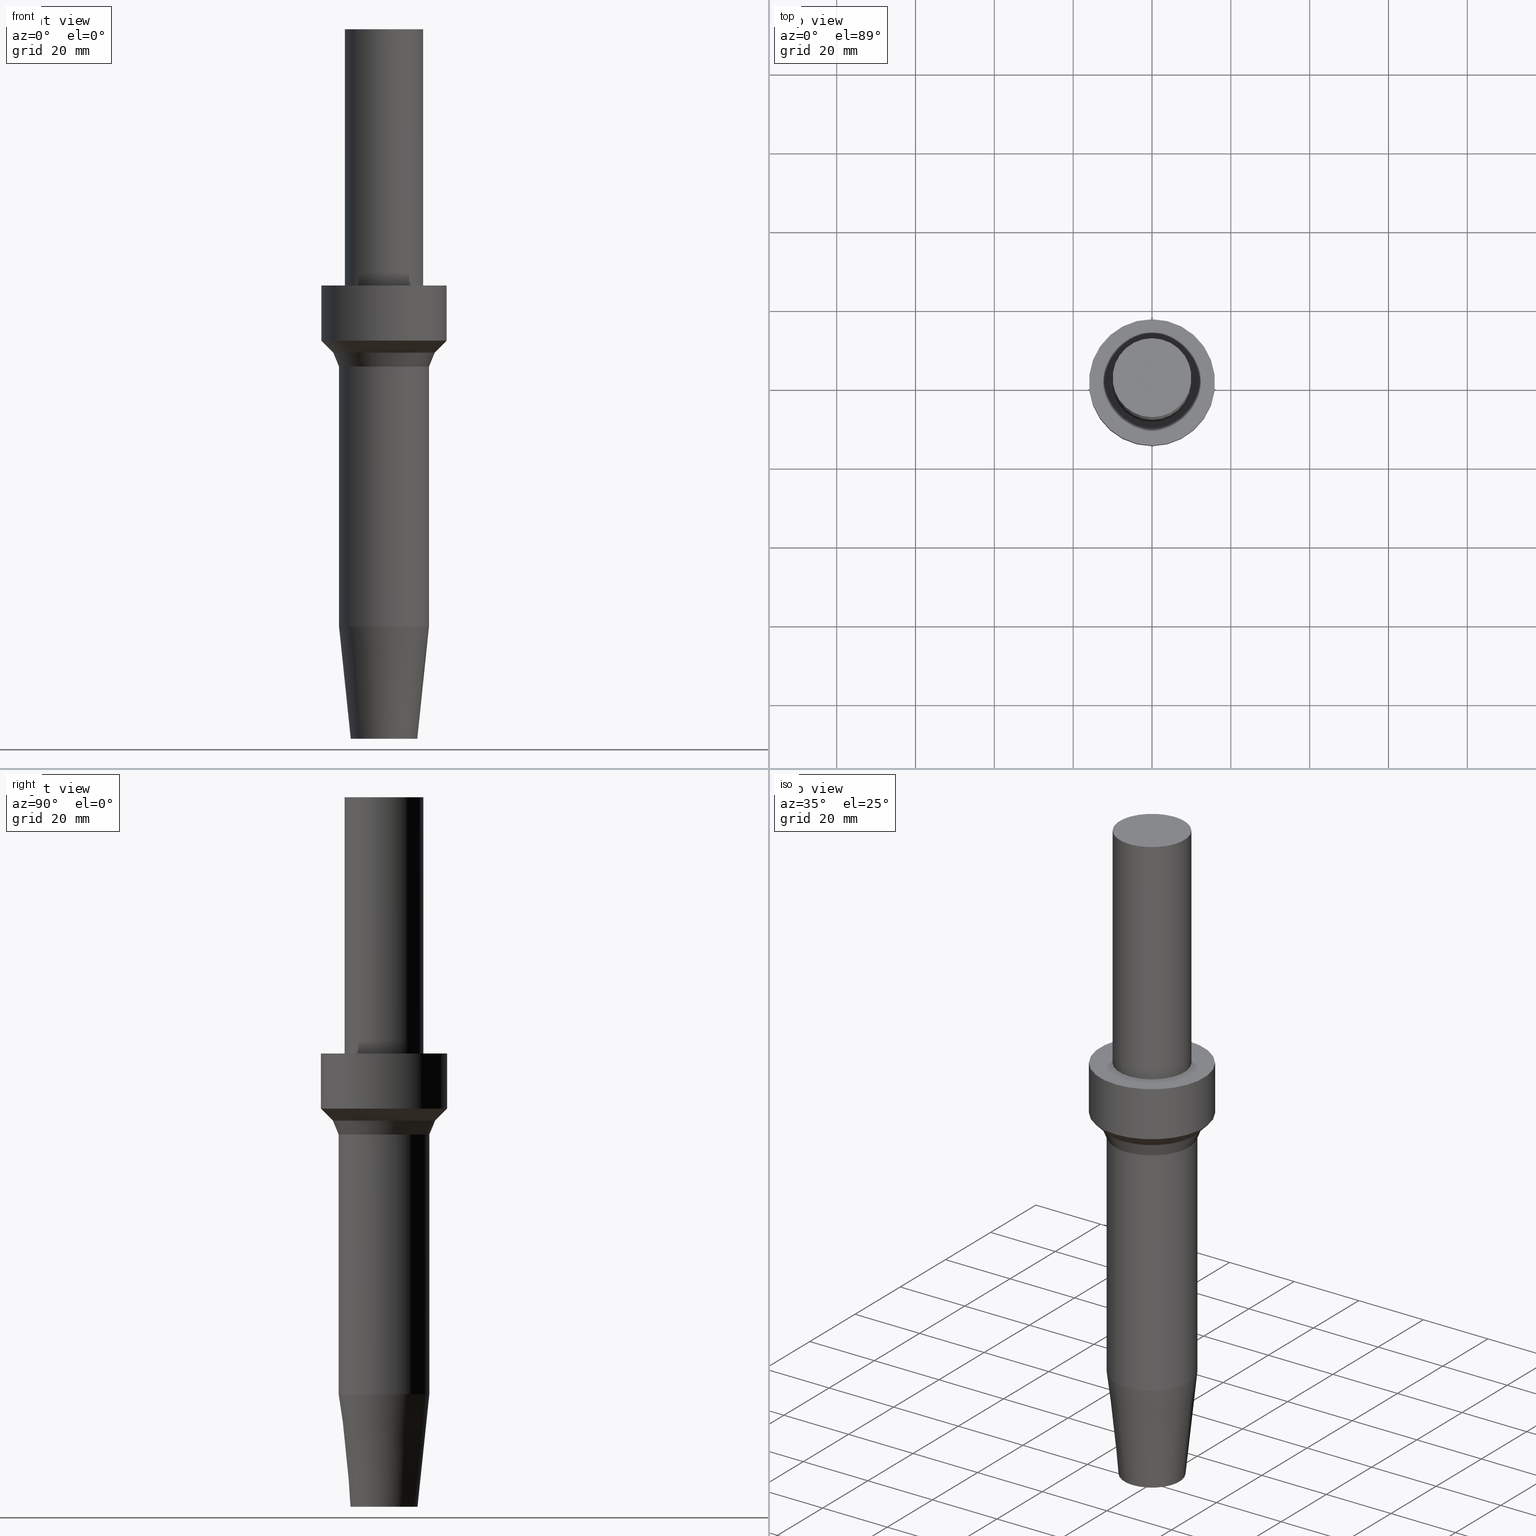
[diagram: canonical four-view strip — front | top / right | iso, engineering-drawing reading convention]
A machine part, canonical four-view strip (front | top / right | iso — engineering-drawing reading convention). The complete STEP part file that produces these views, byte-faithful:
ISO-10303-21;
HEADER;
FILE_DESCRIPTION((''),'1');
FILE_NAME('W:/Translate/00_BIG-HP\X2\FF71FF6FFF8CFF9F\X0\2013/\X2\30C030A630F330ED30FC30C930C730FC30BF\X0\/Vol9\X2\4EE5964D63B28F094E885B9A\X0\/20140611\X2\6DE18DEF628088533088308A\X0\/ST-HDC_S/ST20-HDC8S-180.stp','2014-06-12T04:53:44',(''),(''),'Spatial Interop R18','Kubotek KeyCreator V8.5.1 (14335)',' ');
FILE_SCHEMA(('CONFIG_CONTROL_DESIGN'));
ENDSEC;
DATA;
#1=DESIGN_CONTEXT('',#27,'design');
#2=APPLICATION_PROTOCOL_DEFINITION('INTERNATIONAL STANDARD','config_control_design',1994,#27);
#3=PRODUCT_CATEGORY_RELATIONSHIP('NONE','NONE',#28,#29);
#4=DATE_AND_TIME(#30,#31);
#5=DATE_TIME_ROLE('creation_date');
#6=DATE_TIME_ROLE('classification_date');
#7=PERSON_AND_ORGANIZATION_ROLE('creator');
#8=PERSON_AND_ORGANIZATION_ROLE('design_supplier');
#9=PERSON_AND_ORGANIZATION_ROLE('classification_officer');
#10=PERSON_AND_ORGANIZATION_ROLE('design_owner');
#11=APPROVAL_PERSON_ORGANIZATION(#32,#33,#34);
#12=APPROVAL_DATE_TIME(#4,#33);
#13=CC_DESIGN_APPROVAL(#33,(#35,#36,#37));
#14=CC_DESIGN_DATE_AND_TIME_ASSIGNMENT(#4,#5,(#37));
#15=CC_DESIGN_DATE_AND_TIME_ASSIGNMENT(#4,#6,(#35));
#16=CC_DESIGN_PERSON_AND_ORGANIZATION_ASSIGNMENT(#32,#10,(#38));
#17=CC_DESIGN_PERSON_AND_ORGANIZATION_ASSIGNMENT(#32,#7,(#37));
#18=CC_DESIGN_PERSON_AND_ORGANIZATION_ASSIGNMENT(#32,#7,(#36));
#19=CC_DESIGN_PERSON_AND_ORGANIZATION_ASSIGNMENT(#32,#8,(#36));
#20=CC_DESIGN_SECURITY_CLASSIFICATION(#35,(#36));
#21=CC_DESIGN_PERSON_AND_ORGANIZATION_ASSIGNMENT(#32,#9,(#35));
#22=SHAPE_DEFINITION_REPRESENTATION(#39,#40);
#23= (GEOMETRIC_REPRESENTATION_CONTEXT(3)GLOBAL_UNCERTAINTY_ASSIGNED_CONTEXT((#43))GLOBAL_UNIT_ASSIGNED_CONTEXT((#45,#46,#47))REPRESENTATION_CONTEXT('NONE','WORKSPACE'));
#27=APPLICATION_CONTEXT('CONFIGURATION CONTROLLED 3D DESIGNS OF MECHANICAL PARTS AND ASSEMBLIES');
#28=PRODUCT_CATEGORY('part','NONE');
#29=PRODUCT_RELATED_PRODUCT_CATEGORY('detail',' ',(#38));
#30=CALENDAR_DATE(2014,12,5);
#31=LOCAL_TIME(13,53,44.0,#49);
#32=PERSON_AND_ORGANIZATION(#50,#51);
#33=APPROVAL(#52,'SOLID MODEL');
#34=APPROVAL_ROLE('APPROVED');
#35=SECURITY_CLASSIFICATION('','',#53);
#36=PRODUCT_DEFINITION_FORMATION_WITH_SPECIFIED_SOURCE(' ','NONE',#38,.NOT_KNOWN.);
#37=PRODUCT_DEFINITION('NONE','NONE',#36,#1);
#38=PRODUCT('1','1','PART-1-DESC',(#54));
#39=PRODUCT_DEFINITION_SHAPE('NONE','NONE',#37);
#40=ADVANCED_BREP_SHAPE_REPRESENTATION('1',(#55,#56),#23);
#43=UNCERTAINTY_MEASURE_WITH_UNIT(LENGTH_MEASURE(1.0E-006),#45,'','');
#45= (CONVERSION_BASED_UNIT('MILLIMETRE',#59)LENGTH_UNIT()NAMED_UNIT(#62));
#46= (NAMED_UNIT(#64)PLANE_ANGLE_UNIT()SI_UNIT($,.RADIAN.));
#47= (NAMED_UNIT(#64)SOLID_ANGLE_UNIT()SI_UNIT($,.STERADIAN.));
#49=COORDINATED_UNIVERSAL_TIME_OFFSET(9,0,.AHEAD.);
#50=PERSON('','UNSPECIFIED',$,$,$,$);
#51=ORGANIZATION('UNSPECIFIED','UNSPECIFIED','UNSPECIFIED');
#52=APPROVAL_STATUS('approved');
#53=SECURITY_CLASSIFICATION_LEVEL('unclassified');
#54=MECHANICAL_CONTEXT('',#27,'mechanical');
#55=MANIFOLD_SOLID_BREP('1',#70);
#56=AXIS2_PLACEMENT_3D('',#71,#72,#73);
#59=LENGTH_MEASURE_WITH_UNIT(LENGTH_MEASURE(1.0),#74);
#62=DIMENSIONAL_EXPONENTS(1.0,0.0,0.0,0.0,0.0,0.0,0.0);
#64=DIMENSIONAL_EXPONENTS(0.0,0.0,0.0,0.0,0.0,0.0,0.0);
#70=CLOSED_SHELL('',(#75,#76,#77,#78,#79,#80,#81,#82,#83));
#71=CARTESIAN_POINT('',(0.0,0.0,0.0));
#72=DIRECTION('',(0.0,0.0,1.0));
#73=DIRECTION('',(1.0,0.0,0.0));
#74= (NAMED_UNIT(#62)LENGTH_UNIT()SI_UNIT(.MILLI.,.METRE.));
#75=ADVANCED_FACE('',(#85),#86,.T.);
#76=ADVANCED_FACE('',(#87,#88),#89,.T.);
#77=ADVANCED_FACE('',(#90,#91),#92,.T.);
#78=ADVANCED_FACE('',(#93,#94),#95,.T.);
#79=ADVANCED_FACE('',(#96,#97),#98,.T.);
#80=ADVANCED_FACE('',(#99,#100),#101,.T.);
#81=ADVANCED_FACE('',(#102,#103),#104,.T.);
#82=ADVANCED_FACE('',(#105,#106),#107,.T.);
#83=ADVANCED_FACE('',(#108),#109,.T.);
#85=FACE_OUTER_BOUND('',#110,.T.);
#86=PLANE('',#111);
#87=FACE_BOUND('',#112,.T.);
#88=FACE_BOUND('',#113,.T.);
#89=CYLINDRICAL_SURFACE('',#114,10.0000000004299);
#90=FACE_OUTER_BOUND('',#115,.T.);
#91=FACE_BOUND('',#116,.T.);
#92=PLANE('',#117);
#93=FACE_BOUND('',#118,.T.);
#94=FACE_BOUND('',#119,.T.);
#95=CYLINDRICAL_SURFACE('',#120,16.0000000000006);
#96=FACE_BOUND('',#121,.T.);
#97=FACE_BOUND('',#122,.T.);
#98=CONICAL_SURFACE('',#123,14.482233047034,0.785398163397401);
#99=FACE_BOUND('',#124,.T.);
#100=FACE_BOUND('',#125,.T.);
#101=CONICAL_SURFACE('',#126,12.232233047034,0.392699081698699);
#102=FACE_BOUND('',#127,.T.);
#103=FACE_BOUND('',#128,.T.);
#104=CYLINDRICAL_SURFACE('',#129,11.5000000000004);
#105=FACE_BOUND('',#130,.T.);
#106=FACE_BOUND('',#131,.T.);
#107=CONICAL_SURFACE('',#132,10.0000000000051,0.104719755119663);
#108=FACE_OUTER_BOUND('',#133,.T.);
#109=PLANE('',#134);
#110=EDGE_LOOP('',(#135));
#111=AXIS2_PLACEMENT_3D('',#136,#137,#138);
#112=EDGE_LOOP('',(#139));
#113=EDGE_LOOP('',(#140));
#114=AXIS2_PLACEMENT_3D('',#141,#142,#143);
#115=EDGE_LOOP('',(#144));
#116=EDGE_LOOP('',(#145));
#117=AXIS2_PLACEMENT_3D('',#146,#147,#148);
#118=EDGE_LOOP('',(#149));
#119=EDGE_LOOP('',(#150));
#120=AXIS2_PLACEMENT_3D('',#151,#152,#153);
#121=EDGE_LOOP('',(#154));
#122=EDGE_LOOP('',(#155));
#123=AXIS2_PLACEMENT_3D('',#156,#157,#158);
#124=EDGE_LOOP('',(#159));
#125=EDGE_LOOP('',(#160));
#126=AXIS2_PLACEMENT_3D('',#161,#162,#163);
#127=EDGE_LOOP('',(#164));
#128=EDGE_LOOP('',(#165));
#129=AXIS2_PLACEMENT_3D('',#166,#167,#168);
#130=EDGE_LOOP('',(#169));
#131=EDGE_LOOP('',(#170));
#132=AXIS2_PLACEMENT_3D('',#171,#172,#173);
#133=EDGE_LOOP('',(#174));
#134=AXIS2_PLACEMENT_3D('',#175,#176,#177);
#135=ORIENTED_EDGE('',*,*,#178,.F.);
#136=CARTESIAN_POINT('',(-1.10218211923265E-014,5.00000000021493,180.000000000006));
#137=DIRECTION('',(-6.12323399573677E-017,-3.88838283143855E-014,1.0));
#138=DIRECTION('',(2.38577494692114E-030,-1.0,-3.88838283143855E-014));
#139=ORIENTED_EDGE('',*,*,#179,.F.);
#140=ORIENTED_EDGE('',*,*,#178,.T.);
#141=CARTESIAN_POINT('',(-9.03177014371211E-015,1.64611849873022E-014,147.500000000006));
#142=DIRECTION('',(-6.12323399573677E-017,1.11601254151197E-016,1.0));
#143=DIRECTION('',(2.00645320308564E-033,1.0,-1.11601254151197E-016));
#144=ORIENTED_EDGE('',*,*,#180,.F.);
#145=ORIENTED_EDGE('',*,*,#179,.T.);
#146=CARTESIAN_POINT('',(-7.04171909509769E-015,13.0000000002153,115.000000000007));
#147=DIRECTION('',(-6.12323399573677E-017,-4.9860456186679E-014,1.0));
#148=DIRECTION('',(3.05789955638294E-030,-1.0,-4.9860456186679E-014));
#149=ORIENTED_EDGE('',*,*,#181,.F.);
#150=ORIENTED_EDGE('',*,*,#180,.T.);
#151=CARTESIAN_POINT('',(-6.61309271539614E-015,1.205293544833E-014,108.000000000007));
#152=DIRECTION('',(-6.12323399573677E-017,1.11601254151197E-016,1.0));
#153=DIRECTION('',(2.00645320308564E-033,1.0,-1.11601254151197E-016));
#154=ORIENTED_EDGE('',*,*,#182,.F.);
#155=ORIENTED_EDGE('',*,*,#181,.T.);
#156=CARTESIAN_POINT('',(-6.09152991365446E-015,1.11023419738114E-014,99.4822330470406));
#157=DIRECTION('',(-6.12323399573677E-017,1.11601254151197E-016,1.0));
#158=DIRECTION('',(2.00645320308564E-033,1.0,-1.11601254151197E-016));
#159=ORIENTED_EDGE('',*,*,#183,.F.);
#160=ORIENTED_EDGE('',*,*,#182,.T.);
#161=CARTESIAN_POINT('',(-5.89034898458492E-015,1.07356722693529E-014,96.1966991411076));
#162=DIRECTION('',(-6.12323399573677E-017,1.11601254151197E-016,1.0));
#163=DIRECTION('',(2.00645320308564E-033,1.0,-1.11601254151197E-016));
#164=ORIENTED_EDGE('',*,*,#184,.F.);
#165=ORIENTED_EDGE('',*,*,#183,.T.);
#166=CARTESIAN_POINT('',(-3.76493243688386E-015,6.86191613848658E-015,61.4860127753594));
#167=DIRECTION('',(-6.12323399573677E-017,1.11601254151197E-016,1.0));
#168=DIRECTION('',(2.00645320308564E-033,1.0,-1.11601254151197E-016));
#169=ORIENTED_EDGE('',*,*,#185,.F.);
#170=ORIENTED_EDGE('',*,*,#184,.T.);
#171=CARTESIAN_POINT('',(-8.73880198106116E-016,1.5927225083092E-015,14.2715466812888));
#172=DIRECTION('',(-6.12323399573677E-017,1.11601254151197E-016,1.0));
#173=DIRECTION('',(2.00645320308564E-033,1.0,-1.11601254151197E-016));
#174=ORIENTED_EDGE('',*,*,#185,.T.);
#175=CARTESIAN_POINT('',(-1.19906857593594E-028,4.25000000000489,1.96109795069788E-012));
#176=DIRECTION('',(6.12323399573677E-017,-4.61312347248466E-013,-1.0));
#177=DIRECTION('',(2.82424073205186E-029,1.0,-4.61312347248466E-013));
#178=EDGE_CURVE('',#186,#186,#187,.T.);
#179=EDGE_CURVE('',#188,#188,#189,.T.);
#180=EDGE_CURVE('',#190,#190,#191,.T.);
#181=EDGE_CURVE('',#192,#192,#193,.T.);
#182=EDGE_CURVE('',#194,#194,#195,.T.);
#183=EDGE_CURVE('',#196,#196,#197,.T.);
#184=EDGE_CURVE('',#198,#198,#199,.T.);
#185=EDGE_CURVE('',#200,#200,#201,.T.);
#186=VERTEX_POINT('',#202);
#187=CIRCLE('',#203,10.0000000004298);
#188=VERTEX_POINT('',#204);
#189=CIRCLE('',#205,10.0000000004299);
#190=VERTEX_POINT('',#206);
#191=CIRCLE('',#207,16.0000000000008);
#192=VERTEX_POINT('',#208);
#193=CIRCLE('',#209,16.0000000000005);
#194=VERTEX_POINT('',#210);
#195=CIRCLE('',#211,12.9644660940675);
#196=VERTEX_POINT('',#212);
#197=CIRCLE('',#213,11.5000000000004);
#198=VERTEX_POINT('',#214);
#199=CIRCLE('',#215,11.5000000000004);
#200=VERTEX_POINT('',#216);
#201=CIRCLE('',#217,8.50000000000978);
#202=CARTESIAN_POINT('',(-1.10218211923265E-014,10.0000000004298,180.000000000006));
#203=AXIS2_PLACEMENT_3D('',#218,#219,#220);
#204=CARTESIAN_POINT('',(-7.04171909509768E-015,10.0000000004299,115.000000000007));
#205=AXIS2_PLACEMENT_3D('',#221,#222,#223);
#206=CARTESIAN_POINT('',(-7.0417190950977E-015,16.0000000000008,115.000000000007));
#207=AXIS2_PLACEMENT_3D('',#224,#225,#226);
#208=CARTESIAN_POINT('',(-6.18446633569457E-015,16.0000000000005,101.000000000007));
#209=AXIS2_PLACEMENT_3D('',#227,#228,#229);
#210=CARTESIAN_POINT('',(-5.99859349161435E-015,12.9644660940675,97.9644660940739));
#211=AXIS2_PLACEMENT_3D('',#230,#231,#232);
#212=CARTESIAN_POINT('',(-5.78210447755549E-015,11.5000000000004,94.4289321881413));
#213=AXIS2_PLACEMENT_3D('',#233,#234,#235);
#214=CARTESIAN_POINT('',(-1.74776039621223E-015,11.5000000000004,28.5430933625775));
#215=AXIS2_PLACEMENT_3D('',#236,#237,#238);
#216=CARTESIAN_POINT('',(0.0,8.50000000000978,0.0));
#217=AXIS2_PLACEMENT_3D('',#239,#240,#241);
#218=CARTESIAN_POINT('',(-1.10218211923265E-014,2.00882257472161E-014,180.000000000006));
#219=DIRECTION('',(6.12323399573677E-017,-1.11601254151197E-016,-1.0));
#220=DIRECTION('',(2.00645320308564E-033,1.0,-1.11601254151197E-016));
#221=CARTESIAN_POINT('',(-7.04171909509768E-015,1.28341442273884E-014,115.000000000007));
#222=DIRECTION('',(6.12323399573677E-017,-1.11601254151197E-016,-1.0));
#223=DIRECTION('',(2.00645320308564E-033,1.0,-1.11601254151197E-016));
#224=CARTESIAN_POINT('',(-7.0417190950977E-015,1.28341442273884E-014,115.000000000007));
#225=DIRECTION('',(6.12323399573676E-017,-1.11601254151197E-016,-1.0));
#226=DIRECTION('',(2.00645320308564E-033,1.0,-1.11601254151197E-016));
#227=CARTESIAN_POINT('',(-6.18446633569457E-015,1.12717266692717E-014,101.000000000007));
#228=DIRECTION('',(6.12323399573677E-017,-1.11601254151197E-016,-1.0));
#229=DIRECTION('',(2.00645320308564E-033,1.0,-1.11601254151197E-016));
#230=CARTESIAN_POINT('',(-5.99859349161435E-015,1.0932957278351E-014,97.9644660940739));
#231=DIRECTION('',(6.12323399573677E-017,-1.11601254151197E-016,-1.0));
#232=DIRECTION('',(2.00645320308564E-033,1.0,-1.11601254151197E-016));
#233=CARTESIAN_POINT('',(-5.78210447755549E-015,1.05383872603549E-014,94.4289321881413));
#234=DIRECTION('',(6.12323399573677E-017,-1.11601254151197E-016,-1.0));
#235=DIRECTION('',(2.00645320308564E-033,1.0,-1.11601254151197E-016));
#236=CARTESIAN_POINT('',(-1.74776039621223E-015,3.18544501661835E-015,28.5430933625775));
#237=DIRECTION('',(6.12323399573677E-017,-1.11601254151197E-016,-1.0));
#238=DIRECTION('',(2.00645320308564E-033,1.0,-1.11601254151197E-016));
#239=CARTESIAN_POINT('',(0.0,0.0,0.0));
#240=DIRECTION('',(6.12323399573677E-017,-1.11601254151197E-016,-1.0));
#241=DIRECTION('',(2.00645320308564E-033,1.0,-1.11601254151197E-016));
ENDSEC;
END-ISO-10303-21;
